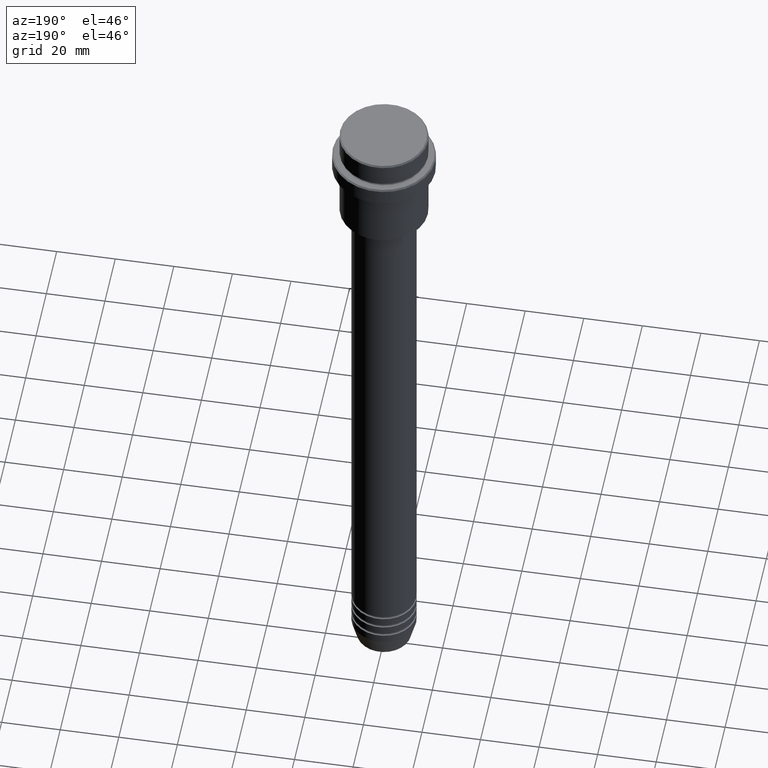
[diagram: clean part render]
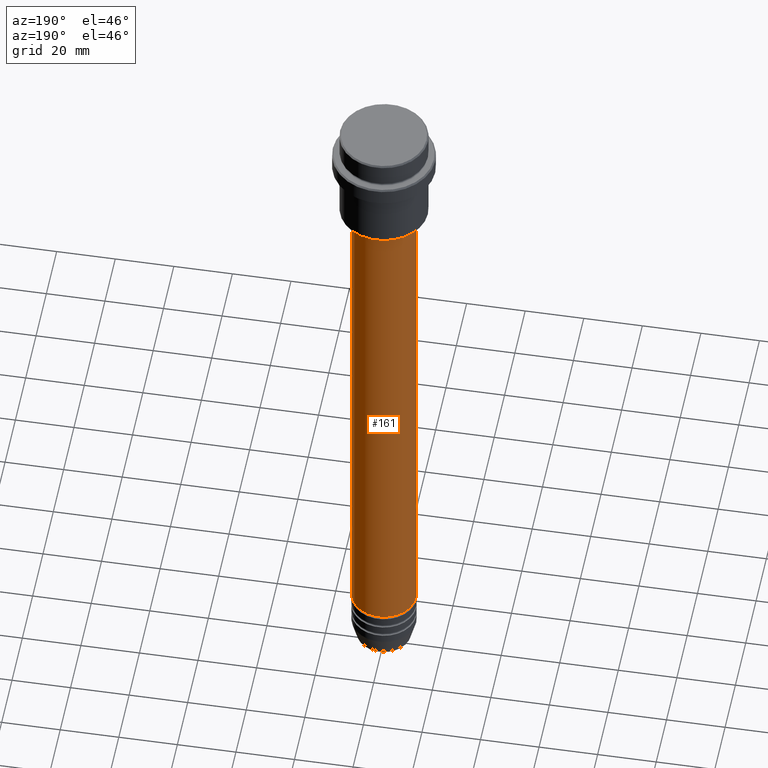
[diagram: same view with one face highlighted and labeled with its STEP entity id]
A machine part, auxiliary view. The second image highlights one B-rep face of the part: STEP entity #161.
In plain terms, the highlighted cylindrical surface (edge-blend (fillet) strip) has radius 11 mm, axis along (-0, -0, 1).
Its self-contained STEP definition (entity closure, byte-faithful):
#13 = AXIS2_PLACEMENT_3D ( 'NONE', #1083, #972, #950 ) ;
#31 = DIRECTION ( 'NONE',  ( -0.000000000000000000, -0.000000000000000000, 1.000000000000000000 ) ) ;
#106 = DIRECTION ( 'NONE',  ( -0.000000000000000000, -0.000000000000000000, 1.000000000000000000 ) ) ;
#135 = VERTEX_POINT ( 'NONE', #363 ) ;
#138 = CARTESIAN_POINT ( 'NONE',  ( 10.99999999999999822, 0.000000000000000000, -37.00000000000000711 ) ) ;
#154 = VERTEX_POINT ( 'NONE', #138 ) ;
#161 = ADVANCED_FACE ( 'NONE', ( #967 ), #1376, .T. ) ;
#168 = CIRCLE ( 'NONE', #212, 11.00000000000000000 ) ;
#199 = CARTESIAN_POINT ( 'NONE',  ( -11.00000000000000000, 1.347111479062088405E-15, 0.000000000000000000 ) ) ;
#212 = AXIS2_PLACEMENT_3D ( 'NONE', #778, #106, #664 ) ;
#286 = EDGE_CURVE ( 'NONE', #598, #654, #745, .T. ) ;
#363 = CARTESIAN_POINT ( 'NONE',  ( 11.00000000000000000, 0.000000000000000000, -221.9999999999998579 ) ) ;
#411 = CARTESIAN_POINT ( 'NONE',  ( -11.00000000000000000, 1.347111479062088405E-15, -221.9999999999998579 ) ) ;
#413 = ORIENTED_EDGE ( 'NONE', *, *, #1353, .F. ) ;
#445 = CIRCLE ( 'NONE', #890, 10.99999999999999822 ) ;
#449 = CARTESIAN_POINT ( 'NONE',  ( 0.000000000000000000, 0.000000000000000000, -37.00000000000000711 ) ) ;
#518 = CARTESIAN_POINT ( 'NONE',  ( -10.99999999999999822, 1.347111479062088207E-15, -37.00000000000000711 ) ) ;
#534 = VECTOR ( 'NONE', #556, 1000.000000000000000 ) ;
#556 = DIRECTION ( 'NONE',  ( -0.000000000000000000, -0.000000000000000000, 1.000000000000000000 ) ) ;
#598 = VERTEX_POINT ( 'NONE', #411 ) ;
#638 = DIRECTION ( 'NONE',  ( -0.000000000000000000, -0.000000000000000000, 1.000000000000000000 ) ) ;
#654 = VERTEX_POINT ( 'NONE', #518 ) ;
#664 = DIRECTION ( 'NONE',  ( 1.000000000000000000, 0.000000000000000000, 0.000000000000000000 ) ) ;
#745 = LINE ( 'NONE', #199, #879 ) ;
#776 = CARTESIAN_POINT ( 'NONE',  ( 11.00000000000000000, 0.000000000000000000, 0.000000000000000000 ) ) ;
#778 = CARTESIAN_POINT ( 'NONE',  ( 0.000000000000000000, 0.000000000000000000, -221.9999999999998579 ) ) ;
#842 = EDGE_CURVE ( 'NONE', #135, #598, #168, .T. ) ;
#879 = VECTOR ( 'NONE', #638, 1000.000000000000000 ) ;
#890 = AXIS2_PLACEMENT_3D ( 'NONE', #449, #31, #1144 ) ;
#950 = DIRECTION ( 'NONE',  ( 1.000000000000000000, 0.000000000000000000, 0.000000000000000000 ) ) ;
#967 = FACE_OUTER_BOUND ( 'NONE', #1236, .T. ) ;
#972 = DIRECTION ( 'NONE',  ( -0.000000000000000000, -0.000000000000000000, 1.000000000000000000 ) ) ;
#990 = ORIENTED_EDGE ( 'NONE', *, *, #1199, .F. ) ;
#1083 = CARTESIAN_POINT ( 'NONE',  ( 0.000000000000000000, 0.000000000000000000, 0.000000000000000000 ) ) ;
#1144 = DIRECTION ( 'NONE',  ( 1.000000000000000000, 0.000000000000000000, 0.000000000000000000 ) ) ;
#1199 = EDGE_CURVE ( 'NONE', #135, #154, #1302, .T. ) ;
#1236 = EDGE_LOOP ( 'NONE', ( #1295, #1394, #413, #990 ) ) ;
#1295 = ORIENTED_EDGE ( 'NONE', *, *, #842, .T. ) ;
#1302 = LINE ( 'NONE', #776, #534 ) ;
#1353 = EDGE_CURVE ( 'NONE', #154, #654, #445, .T. ) ;
#1376 = CYLINDRICAL_SURFACE ( 'NONE', #13, 11.00000000000000000 ) ;
#1394 = ORIENTED_EDGE ( 'NONE', *, *, #286, .T. ) ;